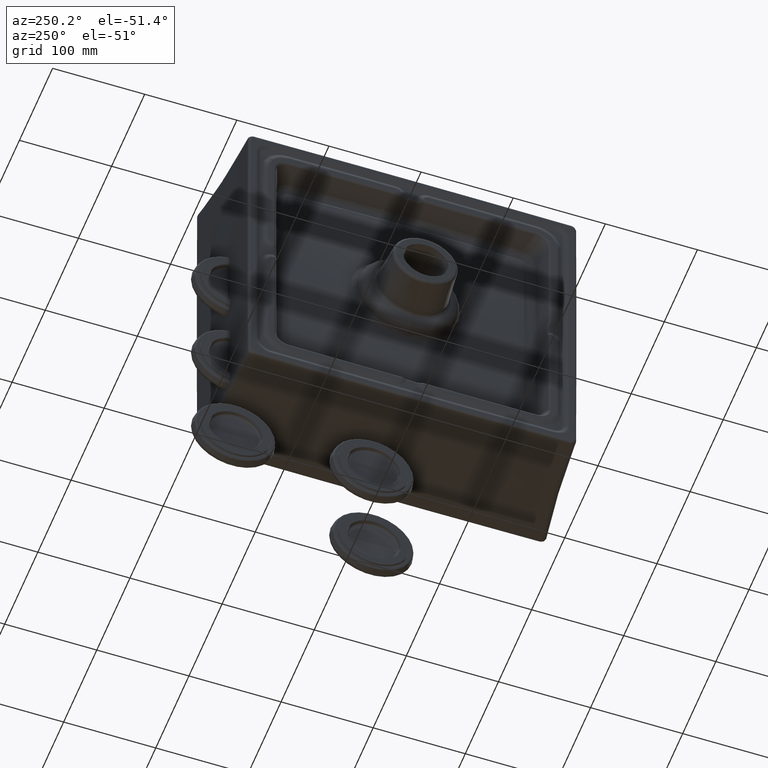
[diagram: clean part render]
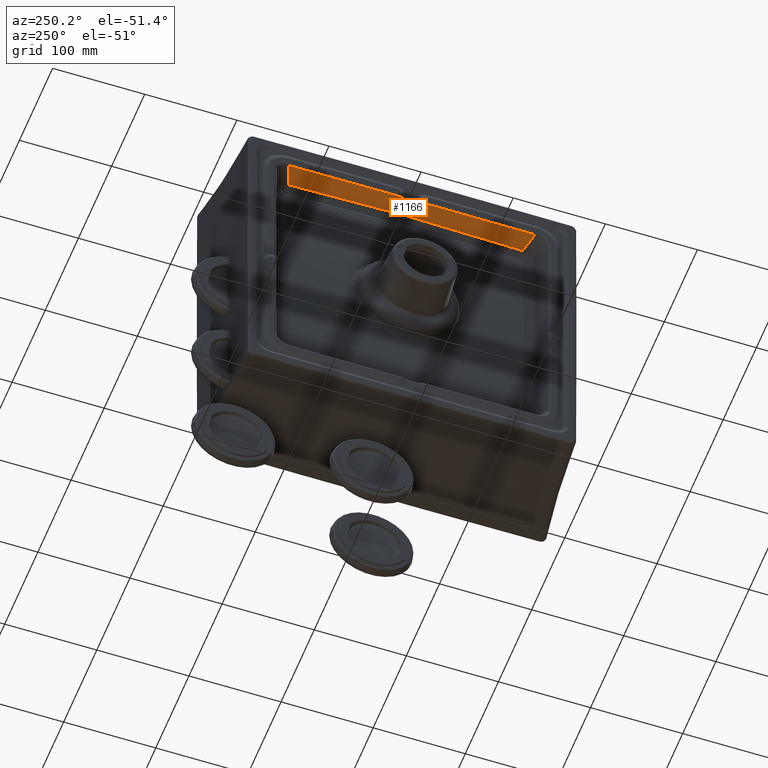
[diagram: same view with one face highlighted and labeled with its STEP entity id]
A machine part, auxiliary view. The second image highlights one B-rep face of the part: STEP entity #1166.
In plain terms, the highlighted conical surface has half-angle 20 deg.
Its self-contained STEP definition (entity closure, byte-faithful):
#376=CONICAL_SURFACE('',#7103,19953.86835231,20.);
#743=B_SPLINE_CURVE_WITH_KNOTS('',3,(#10746,#10747,#10748,#10749),
 .UNSPECIFIED.,.F.,.F.,(4,4),(0.,1.),.UNSPECIFIED.);
#754=B_SPLINE_CURVE_WITH_KNOTS('',3,(#11117,#11118,#11119,#11120,#11121),
 .UNSPECIFIED.,.F.,.F.,(4,1,4),(0.,0.5,1.),.UNSPECIFIED.);
#755=B_SPLINE_CURVE_WITH_KNOTS('',3,(#11164,#11165,#11166,#11167,#11168,
#11169),.UNSPECIFIED.,.F.,.F.,(4,1,1,4),(0.,0.3333333333333,0.6666666666667,
1.),.UNSPECIFIED.);
#756=B_SPLINE_CURVE_WITH_KNOTS('',3,(#11171,#11172,#11173,#11174,#11175,
#11176,#11177,#11178,#11179,#11180,#11181,#11182),.UNSPECIFIED.,.F.,.F.,
(4,1,1,1,1,1,1,1,1,4),(0.,0.1111111111111,0.2222222222222,0.3333333333333,
0.4444444444444,0.5555555555556,0.6666666666667,0.7777777777778,0.8888888888889,
1.),.UNSPECIFIED.);
#757=B_SPLINE_CURVE_WITH_KNOTS('',3,(#11184,#11185,#11186,#11187,#11188,
#11189,#11190,#11191,#11192,#11193,#11194,#11195),.UNSPECIFIED.,.F.,.F.,
(4,1,1,1,1,1,1,1,1,4),(0.,0.1111111111111,0.2222222222222,0.3333333333333,
0.4444444444444,0.5555555555556,0.6666666666667,0.7777777777778,0.8888888888889,
1.),.UNSPECIFIED.);
#758=B_SPLINE_CURVE_WITH_KNOTS('',3,(#11197,#11198,#11199,#11200,#11201,
#11202),.UNSPECIFIED.,.F.,.F.,(4,1,1,4),(0.,0.3333333333333,0.6666666666667,
1.),.UNSPECIFIED.);
#759=B_SPLINE_CURVE_WITH_KNOTS('',3,(#11204,#11205,#11206,#11207),
 .UNSPECIFIED.,.F.,.F.,(4,4),(0.,1.),.UNSPECIFIED.);
#760=B_SPLINE_CURVE_WITH_KNOTS('',3,(#11211,#11212,#11213,#11214,#11215),
 .UNSPECIFIED.,.F.,.F.,(4,1,4),(0.,0.5,1.),.UNSPECIFIED.);
#761=B_SPLINE_CURVE_WITH_KNOTS('',3,(#11217,#11218,#11219,#11220,#11221),
 .UNSPECIFIED.,.F.,.F.,(4,1,4),(0.,0.5,1.),.UNSPECIFIED.);
#762=B_SPLINE_CURVE_WITH_KNOTS('',3,(#11223,#11224,#11225,#11226),
 .UNSPECIFIED.,.F.,.F.,(4,4),(0.,1.),.UNSPECIFIED.);
#763=B_SPLINE_CURVE_WITH_KNOTS('',3,(#11230,#11231,#11232,#11233),
 .UNSPECIFIED.,.F.,.F.,(4,4),(0.,1.),.UNSPECIFIED.);
#764=B_SPLINE_CURVE_WITH_KNOTS('',3,(#11235,#11236,#11237,#11238,#11239),
 .UNSPECIFIED.,.F.,.F.,(4,1,4),(0.,0.5,1.),.UNSPECIFIED.);
#1166=ADVANCED_FACE('',(#1753),#376,.F.);
#1753=FACE_OUTER_BOUND('',#2201,.T.);
#2201=EDGE_LOOP('',(#2916,#2917,#2918,#2919,#2920,#2921,#2922,#2923,#2924,
#2925,#2926,#2927,#2928,#2929,#2930));
#2916=ORIENTED_EDGE('',*,*,#5513,.F.);
#2917=ORIENTED_EDGE('',*,*,#5543,.F.);
#2918=ORIENTED_EDGE('',*,*,#5544,.F.);
#2919=ORIENTED_EDGE('',*,*,#5545,.F.);
#2920=ORIENTED_EDGE('',*,*,#5546,.F.);
#2921=ORIENTED_EDGE('',*,*,#5547,.T.);
#2922=ORIENTED_EDGE('',*,*,#5548,.T.);
#2923=ORIENTED_EDGE('',*,*,#5549,.T.);
#2924=ORIENTED_EDGE('',*,*,#5550,.T.);
#2925=ORIENTED_EDGE('',*,*,#5551,.T.);
#2926=ORIENTED_EDGE('',*,*,#5552,.T.);
#2927=ORIENTED_EDGE('',*,*,#5553,.T.);
#2928=ORIENTED_EDGE('',*,*,#5554,.T.);
#2929=ORIENTED_EDGE('',*,*,#5542,.T.);
#2930=ORIENTED_EDGE('',*,*,#5555,.T.);
#4858=VERTEX_POINT('',#10609);
#4859=VERTEX_POINT('',#10750);
#4868=VERTEX_POINT('',#11111);
#4869=VERTEX_POINT('',#11116);
#4870=VERTEX_POINT('',#11170);
#4871=VERTEX_POINT('',#11183);
#4872=VERTEX_POINT('',#11196);
#4873=VERTEX_POINT('',#11203);
#4874=VERTEX_POINT('',#11208);
#4875=VERTEX_POINT('',#11210);
#4876=VERTEX_POINT('',#11216);
#4877=VERTEX_POINT('',#11222);
#4878=VERTEX_POINT('',#11227);
#4879=VERTEX_POINT('',#11229);
#4880=VERTEX_POINT('',#11234);
#5513=EDGE_CURVE('',#4858,#4859,#743,.T.);
#5542=EDGE_CURVE('',#4868,#4869,#754,.T.);
#5543=EDGE_CURVE('',#4870,#4858,#755,.T.);
#5544=EDGE_CURVE('',#4871,#4870,#756,.T.);
#5545=EDGE_CURVE('',#4872,#4871,#757,.T.);
#5546=EDGE_CURVE('',#4873,#4872,#758,.T.);
#5547=EDGE_CURVE('',#4873,#4874,#759,.T.);
#5548=EDGE_CURVE('',#4874,#4875,#6524,.T.);
#5549=EDGE_CURVE('',#4875,#4876,#760,.T.);
#5550=EDGE_CURVE('',#4876,#4877,#761,.T.);
#5551=EDGE_CURVE('',#4877,#4878,#762,.T.);
#5552=EDGE_CURVE('',#4878,#4879,#6525,.T.);
#5553=EDGE_CURVE('',#4879,#4880,#763,.T.);
#5554=EDGE_CURVE('',#4880,#4868,#764,.T.);
#5555=EDGE_CURVE('',#4869,#4859,#6526,.T.);
#6524=CIRCLE('',#7100,19957.28154475);
#6525=CIRCLE('',#7101,19956.55360428);
#6526=CIRCLE('',#7102,19957.28154475);
#7100=AXIS2_PLACEMENT_3D('',#11209,#8055,#8056);
#7101=AXIS2_PLACEMENT_3D('',#11228,#8057,#8058);
#7102=AXIS2_PLACEMENT_3D('',#11240,#8059,#8060);
#7103=AXIS2_PLACEMENT_3D('',#11241,#8061,#8062);
#8055=DIRECTION('',(0.,-1.,0.));
#8056=DIRECTION('',(0.999977606932204,0.,-0.00669220697096303));
#8057=DIRECTION('',(0.,-1.,0.));
#8058=DIRECTION('',(0.999999961647741,0.,-0.000276955800817511));
#8059=DIRECTION('',(0.,-1.,0.));
#8060=DIRECTION('',(0.999999814365471,0.,0.000609318491777482));
#8061=DIRECTION('',(0.,-1.,0.));
#8062=DIRECTION('',(-1.,-4.2689665748278E-019,0.));
#10609=CARTESIAN_POINT('',(140.5525288704,20.72927079919,126.7491115067));
#10746=CARTESIAN_POINT('',(140.5525276978,20.7292703724,126.7491114992));
#10747=CARTESIAN_POINT('',(142.813553804339,14.4776568340017,129.018957052792));
#10748=CARTESIAN_POINT('',(145.074257761011,8.22587981251144,131.288672720978));
#10749=CARTESIAN_POINT('',(147.334639994298,1.97393956836514,133.558258668009));
#10750=CARTESIAN_POINT('',(147.3345881577,1.973920700964,133.5582583211));
#11111=CARTESIAN_POINT('',(147.6728002819,2.264576933637,10.87156286622));
#11116=CARTESIAN_POINT('',(147.7778399917,1.973939570024,12.16034069083));
#11117=CARTESIAN_POINT('',(147.6728002819,2.264576933637,10.87156286622));
#11118=CARTESIAN_POINT('',(147.7078908048,2.16786218868,11.07491809606));
#11119=CARTESIAN_POINT('',(147.7598940217,2.024340167105,11.49401948309));
#11120=CARTESIAN_POINT('',(147.7780002959,1.973877316687,11.93444170918));
#11121=CARTESIAN_POINT('',(147.7778399836,1.973939567089,12.16034069082));
#11164=CARTESIAN_POINT('',(140.6011925123,20.63468417763,124.4880261834));
#11165=CARTESIAN_POINT('',(140.5957489054,20.64471623394,124.7752407682));
#11166=CARTESIAN_POINT('',(140.5854815551,20.66345756302,125.3254523062));
#11167=CARTESIAN_POINT('',(140.56929046,20.69532532455,126.053845686));
#11168=CARTESIAN_POINT('',(140.5581870406,20.71768304024,126.5227961671));
#11169=CARTESIAN_POINT('',(140.5525288704,20.72927079919,126.7491115067));
#11170=CARTESIAN_POINT('',(140.6011925123,20.63468417763,124.4880261834));
#11171=CARTESIAN_POINT('',(141.6256646014,18.88708128745,-8.915872194957E-005));
#11172=CARTESIAN_POINT('',(141.6255576262,18.88737539018,6.6894497192));
#11173=CARTESIAN_POINT('',(141.6121387068,18.90577738536,19.60652446396));
#11174=CARTESIAN_POINT('',(141.5549100089,18.99101726992,37.59509664209));
#11175=CARTESIAN_POINT('',(141.4648684961,19.13240033044,54.19944011685));
#11176=CARTESIAN_POINT('',(141.347552965,19.32420420596,69.41927260701));
#11177=CARTESIAN_POINT('',(141.2096907495,19.55666100664,83.25370472005));
#11178=CARTESIAN_POINT('',(141.0585904589,19.81762763828,95.70128893795));
#11179=CARTESIAN_POINT('',(140.9016971018,20.09379005145,106.7614664851));
#11180=CARTESIAN_POINT('',(140.7457271513,20.37303763849,116.4340127076));
#11181=CARTESIAN_POINT('',(140.6480163109,20.54942281813,121.9574710532));
#11182=CARTESIAN_POINT('',(140.6011925123,20.63468417763,124.4880261834));
#11183=CARTESIAN_POINT('',(141.6256646014,18.88708128745,-8.915872194957E-005));
#11184=CARTESIAN_POINT('',(140.6012167908,20.63464452218,-124.4864250764));
#11185=CARTESIAN_POINT('',(140.6480459652,20.5493735557,-121.9555365899));
#11186=CARTESIAN_POINT('',(140.7457726589,20.3729533715,-116.4315010532));
#11187=CARTESIAN_POINT('',(140.9017438773,20.09370750245,-106.7583521711));
#11188=CARTESIAN_POINT('',(141.058635974,19.81754815244,-95.69784106857));
#11189=CARTESIAN_POINT('',(141.2097296386,19.55659441322,-83.25018988171));
#11190=CARTESIAN_POINT('',(141.3475812215,19.3241579849,-69.41596393602));
#11191=CARTESIAN_POINT('',(141.4648871988,19.13236980143,-54.19658824441));
#11192=CARTESIAN_POINT('',(141.554918204,18.99100503034,-37.59297821779));
#11193=CARTESIAN_POINT('',(141.6121404676,18.90577462149,-19.605404712));
#11194=CARTESIAN_POINT('',(141.6255575948,18.88737528111,-6.689166547806));
#11195=CARTESIAN_POINT('',(141.6256646014,18.88708128745,-8.915872194957E-005));
#11196=CARTESIAN_POINT('',(140.6012167908,20.63464452218,-124.4864250764));
#11197=CARTESIAN_POINT('',(140.5525243645,20.72927769015,-126.7491087583));
#11198=CARTESIAN_POINT('',(140.5582119892,20.71762432963,-126.5215258423));
#11199=CARTESIAN_POINT('',(140.5693859491,20.69512623226,-126.0505572366));
#11200=CARTESIAN_POINT('',(140.5859387177,20.66258000465,-125.3034606059));
#11201=CARTESIAN_POINT('',(140.5959419948,20.64436469205,-124.764757003));
#11202=CARTESIAN_POINT('',(140.6012167908,20.63464452218,-124.4864250764));
#11203=CARTESIAN_POINT('',(140.5525243645,20.72927769015,-126.7491087583));
#11204=CARTESIAN_POINT('',(140.552524973604,20.7292779118486,-126.749108762165));
#11205=CARTESIAN_POINT('',(142.813056215919,14.4790326285444,-129.018458555978));
#11206=CARTESIAN_POINT('',(145.073761216812,8.22725318105351,-131.288175183588));
#11207=CARTESIAN_POINT('',(147.334639996494,1.973939569376,-133.558258667054));
#11208=CARTESIAN_POINT('',(147.3346399936,1.973939570024,-133.5582586753));
#11209=CARTESIAN_POINT('',(-19809.5,1.973939570024,0.));
#11210=CARTESIAN_POINT('',(147.7778399902,1.973939569491,-12.16034069083));
#11211=CARTESIAN_POINT('',(147.7778399902,1.973939569491,-12.16034069083));
#11212=CARTESIAN_POINT('',(147.7779722609,1.973955963167,-11.93345284428));
#11213=CARTESIAN_POINT('',(147.7598572197,2.024442938341,-11.49299819856));
#11214=CARTESIAN_POINT('',(147.7077198503,2.168332952131,-11.07415427491));
#11215=CARTESIAN_POINT('',(147.6729213534,2.264243089833,-10.87236648559));
#11216=CARTESIAN_POINT('',(147.6729213534,2.264243089833,-10.87236648559));
#11217=CARTESIAN_POINT('',(147.6729213534,2.264243089833,-10.87236648559));
#11218=CARTESIAN_POINT('',(147.6616203632,2.295390348222,-10.8068605148));
#11219=CARTESIAN_POINT('',(147.6379889053,2.360499303129,-10.68139665935));
#11220=CARTESIAN_POINT('',(147.610941974,2.434999142394,-10.56001631378));
#11221=CARTESIAN_POINT('',(147.5967993607,2.473940514036,-10.50131784857));
#11222=CARTESIAN_POINT('',(147.5967993607,2.473940514036,-10.50131784857));
#11223=CARTESIAN_POINT('',(147.596796768951,2.47393957071737,-10.5013178472041));
#11224=CARTESIAN_POINT('',(147.239355995145,3.45814498622162,-9.01754865167163));
#11225=CARTESIAN_POINT('',(147.052733052181,3.97288919896502,-7.28967150853716));
#11226=CARTESIAN_POINT('',(147.052838908721,3.97393956643415,-5.52708330150465));
#11227=CARTESIAN_POINT('',(147.0528389048,3.973939570024,-5.527083285032));
#11228=CARTESIAN_POINT('',(-19809.5,3.973939570024,0.));
#11229=CARTESIAN_POINT('',(147.0528829854,3.973955609654,5.527083312363));
#11230=CARTESIAN_POINT('',(147.052838908525,3.97393956698336,5.52708330015261));
#11231=CARTESIAN_POINT('',(147.052764524439,3.97281123592534,7.27849273169237));
#11232=CARTESIAN_POINT('',(147.237747883328,3.46257280687076,9.01092880964118));
#11233=CARTESIAN_POINT('',(147.596796768937,2.47393957075457,10.501317847146));
#11234=CARTESIAN_POINT('',(147.596798784,2.473940304176,10.50131784821));
#11235=CARTESIAN_POINT('',(147.596798784,2.473940304176,10.50131784821));
#11236=CARTESIAN_POINT('',(147.6110185434,2.434786512697,10.56033637446));
#11237=CARTESIAN_POINT('',(147.6379284465,2.360666680982,10.68114689172));
#11238=CARTESIAN_POINT('',(147.6616786164,2.295229923027,10.80710495028));
#11239=CARTESIAN_POINT('',(147.6728002819,2.264576933637,10.87156286622));
#11240=CARTESIAN_POINT('',(-19809.5,1.973939570024,0.));
#11241=CARTESIAN_POINT('',(-19809.5,11.35160874052,0.));